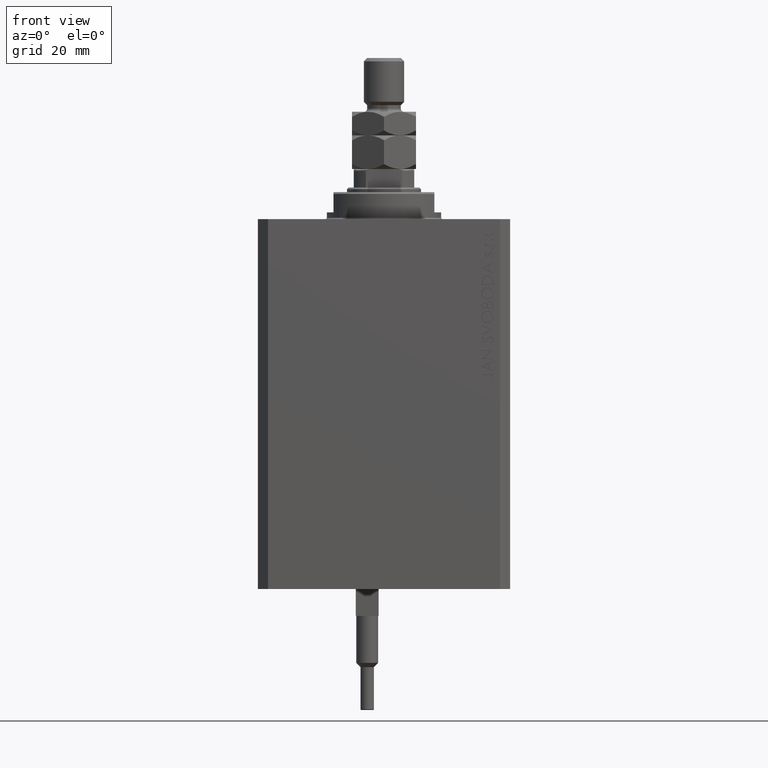
[diagram: clean part render]
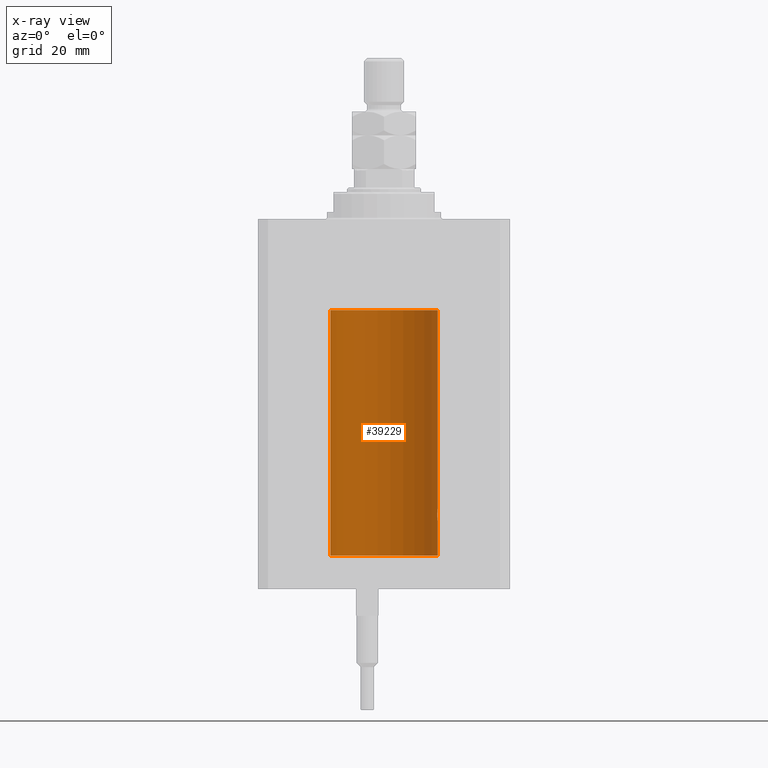
[diagram: x-ray — body ghosted, one internal face saturated and labeled with its STEP entity id]
A machine part, front view, then the same camera in x-ray: the body is ghosted and one INTERNAL B-rep face — a face not visible from any outside direction — is saturated and labeled: STEP entity #39229.
In plain terms, the highlighted cylindrical surface (partial cylindrical patch) has radius 16 mm, axis along (0, 0, 1).
Its self-contained STEP definition (entity closure, byte-faithful):
#472 = CARTESIAN_POINT ( 'NONE',  ( 15.87450786638750699, 2.000000000000297096, -88.00000000000000000 ) ) ;
#1730 = CARTESIAN_POINT ( 'NONE',  ( -16.00000000000000000, 1.959434878635765131E-15, -100.0999999999999943 ) ) ;
#2853 = CARTESIAN_POINT ( 'NONE',  ( 16.00000000000000000, 0.000000000000000000, -100.0999999999999943 ) ) ;
#3313 = CARTESIAN_POINT ( 'NONE',  ( 16.00000000000000000, 3.524002214059393877E-15, -90.00000000000000000 ) ) ;
#3773 = CARTESIAN_POINT ( 'NONE',  ( 15.99836014839681830, 0.2623923436743452187, -89.98699919334814012 ) ) ;
#3901 = CARTESIAN_POINT ( 'NONE',  ( 15.94566414814287469, 1.320819617421907788, -86.49240758272487994 ) ) ;
#4045 = LINE ( 'NONE', #38639, #34839 ) ;
#5860 = B_SPLINE_CURVE_WITH_KNOTS ( 'NONE', 3,
 ( #41761, #25972, #18958, #7429, #38249, #34239, #30461, #26721, #7683, #3901, #33490, #19197, #34477, #41264, #44769, #30952, #30707, #42490 ),
 .UNSPECIFIED., .F., .F.,
 ( 4, 2, 2, 2, 2, 2, 2, 2, 4 ),
 ( 0.003130250677538718058, 0.003521348247420690372, 0.003912445817302662686, 0.004303543387184635000, 0.004694640957066607313, 0.005085738526948579627, 0.005476836096830552808, 0.005867933666712525122, 0.006259031236594497435 ),
 .UNSPECIFIED. ) ;
#6623 = DIRECTION ( 'NONE',  ( -0.000000000000000000, -0.000000000000000000, 1.000000000000000000 ) ) ;
#6752 = AXIS2_PLACEMENT_3D ( 'NONE', #46876, #38873, #12550 ) ;
#7046 = CARTESIAN_POINT ( 'NONE',  ( 16.00000000000000000, 3.524002214059393877E-15, -90.00000000000000000 ) ) ;
#7429 = CARTESIAN_POINT ( 'NONE',  ( 15.88249567060696243, 1.935716055827872539, -87.48027816021618719 ) ) ;
#7683 = CARTESIAN_POINT ( 'NONE',  ( 15.92911104305801828, 1.507378839264603476, -86.67893664295412748 ) ) ;
#10138 = ORIENTED_EDGE ( 'NONE', *, *, #25155, .F. ) ;
#11061 = CARTESIAN_POINT ( 'NONE',  ( 15.95380611548778660, 1.219810915946573759, -89.59032870701324214 ) ) ;
#12550 = DIRECTION ( 'NONE',  ( 1.000000000000000000, 0.000000000000000000, 0.000000000000000000 ) ) ;
#13015 = EDGE_CURVE ( 'NONE', #46896, #34320, #17289, .T. ) ;
#15299 = CARTESIAN_POINT ( 'NONE',  ( 15.90454527605181667, 1.748004143318092174, -89.00616739381551668 ) ) ;
#17289 = LINE ( 'NONE', #1730, #47797 ) ;
#18958 = CARTESIAN_POINT ( 'NONE',  ( 15.87617168140110380, 1.986916736633999037, -87.73680934434936773 ) ) ;
#19074 = CARTESIAN_POINT ( 'NONE',  ( 15.99211620657850474, 0.5182628822511399225, -89.93608344894170159 ) ) ;
#19197 = CARTESIAN_POINT ( 'NONE',  ( 15.96887171920781689, 1.003448269354837441, -86.26505182542071282 ) ) ;
#19780 = DIRECTION ( 'NONE',  ( 0.000000000000000000, 0.000000000000000000, 1.000000000000000000 ) ) ;
#21049 = FACE_OUTER_BOUND ( 'NONE', #44874, .T. ) ;
#21301 = DIRECTION ( 'NONE',  ( 1.000000000000000000, 0.000000000000000000, 0.000000000000000000 ) ) ;
#21563 = ORIENTED_EDGE ( 'NONE', *, *, #13015, .F. ) ;
#21961 = CIRCLE ( 'NONE', #6752, 16.00000000000000000 ) ;
#22332 = CARTESIAN_POINT ( 'NONE',  ( 15.94550883254178331, 1.322613426523511881, -89.50588495029012392 ) ) ;
#23420 = CARTESIAN_POINT ( 'NONE',  ( 16.00000000000000000, 0.000000000000000000, -100.0999999999999943 ) ) ;
#24007 = CARTESIAN_POINT ( 'NONE',  ( 15.87450786638750699, 2.000000000000297096, -88.00000000000000000 ) ) ;
#24898 = EDGE_CURVE ( 'NONE', #30248, #46764, #4045, .T. ) ;
#25155 = EDGE_CURVE ( 'NONE', #44892, #46896, #48458, .T. ) ;
#25309 = CYLINDRICAL_SURFACE ( 'NONE', #29903, 16.00000000000000000 ) ;
#25972 = CARTESIAN_POINT ( 'NONE',  ( 15.87450786638751055, 2.000000000000297984, -87.86943869497294202 ) ) ;
#26721 = CARTESIAN_POINT ( 'NONE',  ( 15.92095407913750726, 1.590131347295332009, -86.77998469042918828 ) ) ;
#26861 = AXIS2_PLACEMENT_3D ( 'NONE', #46583, #19780, #27549 ) ;
#26967 = CARTESIAN_POINT ( 'NONE',  ( -16.00000000000000000, 1.959434878635765131E-15, -100.0999999999999943 ) ) ;
#27119 = DIRECTION ( 'NONE',  ( -0.000000000000000000, -0.000000000000000000, 1.000000000000000000 ) ) ;
#27549 = DIRECTION ( 'NONE',  ( 1.000000000000000000, 0.000000000000000000, 0.000000000000000000 ) ) ;
#28086 = ORIENTED_EDGE ( 'NONE', *, *, #24898, .T. ) ;
#28472 = VECTOR ( 'NONE', #6623, 1000.000000000000000 ) ;
#28578 = DIRECTION ( 'NONE',  ( -0.000000000000000000, -0.000000000000000000, 1.000000000000000000 ) ) ;
#29556 = ORIENTED_EDGE ( 'NONE', *, *, #43899, .T. ) ;
#29903 = AXIS2_PLACEMENT_3D ( 'NONE', #33320, #32818, #21301 ) ;
#30077 = ORIENTED_EDGE ( 'NONE', *, *, #46883, .T. ) ;
#30248 = VERTEX_POINT ( 'NONE', #41828 ) ;
#30339 = CARTESIAN_POINT ( 'NONE',  ( 15.99999999999999645, 0.1323149458028788361, -90.00000000000002842 ) ) ;
#30461 = CARTESIAN_POINT ( 'NONE',  ( 15.90582997788426312, 1.734897462761020082, -86.99646332855050446 ) ) ;
#30578 = CARTESIAN_POINT ( 'NONE',  ( 15.87450786638751410, 2.000000000000297096, -88.26124530359815878 ) ) ;
#30707 = CARTESIAN_POINT ( 'NONE',  ( 16.00000000000000000, 0.1305637488590863926, -85.99999999999998579 ) ) ;
#30824 = CARTESIAN_POINT ( 'NONE',  ( 15.92096875784782739, 1.599058044721133331, -89.22922593843965444 ) ) ;
#30952 = CARTESIAN_POINT ( 'NONE',  ( 15.99834953062734222, 0.2631943783489354982, -86.01308452963878892 ) ) ;
#32022 = ORIENTED_EDGE ( 'NONE', *, *, #40099, .T. ) ;
#32818 = DIRECTION ( 'NONE',  ( -0.000000000000000000, -0.000000000000000000, 1.000000000000000000 ) ) ;
#32872 = CARTESIAN_POINT ( 'NONE',  ( -16.00000000000000000, 1.959434878635765131E-15, -27.10000000000000142 ) ) ;
#33320 = CARTESIAN_POINT ( 'NONE',  ( 0.000000000000000000, 0.000000000000000000, -100.0999999999999943 ) ) ;
#33490 = CARTESIAN_POINT ( 'NONE',  ( 15.95379436193629985, 1.219925354616377966, -86.40980009844315646 ) ) ;
#33853 = CARTESIAN_POINT ( 'NONE',  ( 15.97582125337101999, 0.8876008124445644576, -89.79704090617748591 ) ) ;
#34239 = CARTESIAN_POINT ( 'NONE',  ( 15.89878974374255449, 1.797508500259969777, -87.11334888788564967 ) ) ;
#34320 = VERTEX_POINT ( 'NONE', #32872 ) ;
#34355 = CARTESIAN_POINT ( 'NONE',  ( 15.96893716441426214, 1.002454028984434808, -89.73556042441214231 ) ) ;
#34477 = CARTESIAN_POINT ( 'NONE',  ( 15.97588373855009536, 0.8864683965309503311, -86.20240655627672766 ) ) ;
#34839 = VECTOR ( 'NONE', #27119, 1000.000000000000000 ) ;
#36319 = B_SPLINE_CURVE_WITH_KNOTS ( 'NONE', 3,
 ( #7046, #30339, #3773, #19074, #45877, #33853, #34355, #11061, #22332, #30824, #15299, #45137, #30578, #472 ),
 .UNSPECIFIED., .F., .F.,
 ( 4, 2, 2, 2, 2, 2, 4 ),
 ( 3.424160547694500162E-18, 0.0003912813346923356916, 0.0007825626693846680221, 0.001173844004077000082, 0.001565125338769331924, 0.002347688008154024883, 0.003130250677538718058 ),
 .UNSPECIFIED. ) ;
#38249 = CARTESIAN_POINT ( 'NONE',  ( 15.88712192135845491, 1.897869642555071179, -87.35557946728211220 ) ) ;
#38639 = CARTESIAN_POINT ( 'NONE',  ( 16.00000000000000000, 0.000000000000000000, -100.0999999999999943 ) ) ;
#38873 = DIRECTION ( 'NONE',  ( 0.000000000000000000, 0.000000000000000000, 1.000000000000000000 ) ) ;
#39229 = ADVANCED_FACE ( 'NONE', ( #21049 ), #25309, .F. ) ;
#40099 = EDGE_CURVE ( 'NONE', #46764, #34320, #21961, .T. ) ;
#40513 = VERTEX_POINT ( 'NONE', #24007 ) ;
#40971 = LINE ( 'NONE', #2853, #28472 ) ;
#41264 = CARTESIAN_POINT ( 'NONE',  ( 15.98747899434752817, 0.6443623600228916004, -86.10211550510818768 ) ) ;
#41761 = CARTESIAN_POINT ( 'NONE',  ( 15.87450786638750699, 2.000000000000297096, -88.00000000000000000 ) ) ;
#41828 = CARTESIAN_POINT ( 'NONE',  ( 16.00000000000000000, -2.738688404655786685E-23, -86.00000000000000000 ) ) ;
#42371 = ORIENTED_EDGE ( 'NONE', *, *, #46209, .T. ) ;
#42490 = CARTESIAN_POINT ( 'NONE',  ( 16.00000000000000000, -2.738688404655786685E-23, -86.00000000000000000 ) ) ;
#43899 = EDGE_CURVE ( 'NONE', #44892, #45223, #40971, .T. ) ;
#44769 = CARTESIAN_POINT ( 'NONE',  ( 15.99207203775707065, 0.5197027266689088210, -86.06427960618061945 ) ) ;
#44874 = EDGE_LOOP ( 'NONE', ( #21563, #10138, #29556, #42371, #30077, #28086, #32022 ) ) ;
#44892 = VERTEX_POINT ( 'NONE', #23420 ) ;
#45137 = CARTESIAN_POINT ( 'NONE',  ( 15.88135773388169092, 1.947448446433282854, -88.52472455433247944 ) ) ;
#45223 = VERTEX_POINT ( 'NONE', #3313 ) ;
#45877 = CARTESIAN_POINT ( 'NONE',  ( 15.98743782203464825, 0.6453927552190293904, -89.89754035852679692 ) ) ;
#46209 = EDGE_CURVE ( 'NONE', #45223, #40513, #36319, .T. ) ;
#46583 = CARTESIAN_POINT ( 'NONE',  ( 0.000000000000000000, 0.000000000000000000, -100.0999999999999943 ) ) ;
#46764 = VERTEX_POINT ( 'NONE', #48269 ) ;
#46876 = CARTESIAN_POINT ( 'NONE',  ( 0.000000000000000000, 0.000000000000000000, -27.10000000000000142 ) ) ;
#46883 = EDGE_CURVE ( 'NONE', #40513, #30248, #5860, .T. ) ;
#46896 = VERTEX_POINT ( 'NONE', #26967 ) ;
#47797 = VECTOR ( 'NONE', #28578, 1000.000000000000000 ) ;
#48269 = CARTESIAN_POINT ( 'NONE',  ( 16.00000000000000000, 0.000000000000000000, -27.10000000000000142 ) ) ;
#48458 = CIRCLE ( 'NONE', #26861, 16.00000000000000000 ) ;